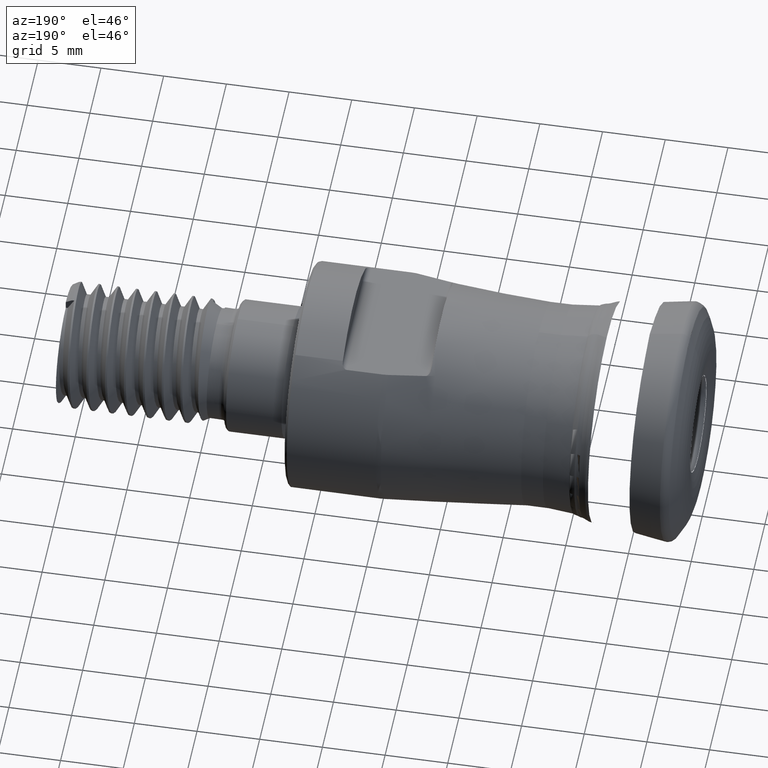
[diagram: clean part render]
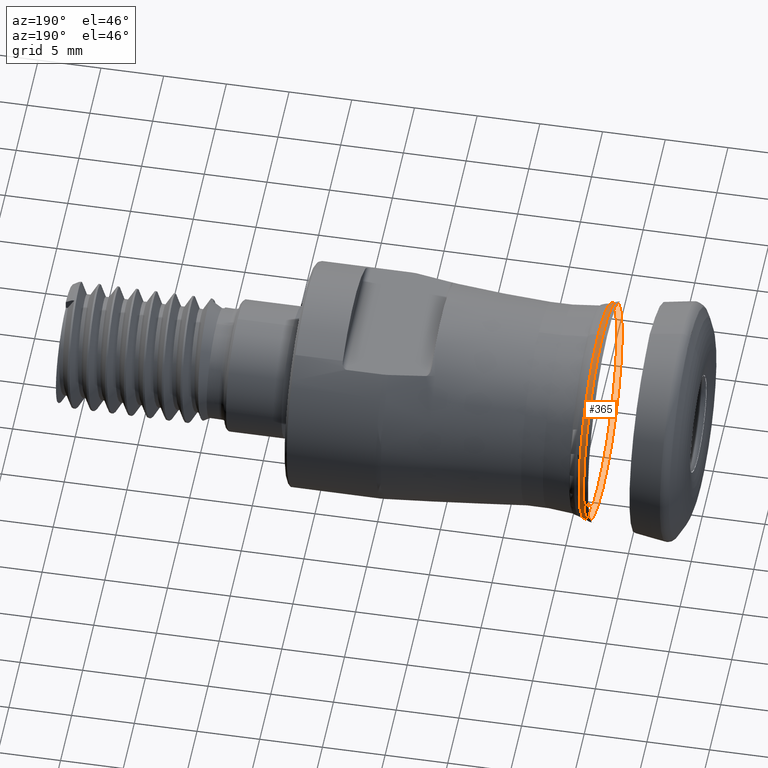
[diagram: same view with one face highlighted and labeled with its STEP entity id]
A machine part, auxiliary view. The second image highlights one B-rep face of the part: STEP entity #365.
In plain terms, the highlighted face is a SurfaceOfRevolution surface.
Its self-contained STEP definition (entity closure, byte-faithful):
#106=SURFACE_OF_REVOLUTION('',#298,#139);
#139=AXIS1_PLACEMENT('',#3573,#1389);
#298=B_SPLINE_CURVE_WITH_KNOTS('',3,(#3569,#3570,#3571,#3572),
 .UNSPECIFIED.,.F.,.F.,(4,4),(0.,1.),.UNSPECIFIED.);
#365=ADVANCED_FACE('',(#451,#452),#106,.T.);
#451=FACE_BOUND('',#576,.T.);
#452=FACE_BOUND('',#577,.T.);
#576=EDGE_LOOP('',(#798));
#577=EDGE_LOOP('',(#799));
#798=ORIENTED_EDGE('',*,*,#1033,.F.);
#799=ORIENTED_EDGE('',*,*,#1034,.T.);
#922=VERTEX_POINT('',#3558);
#923=VERTEX_POINT('',#3568);
#1033=EDGE_CURVE('',#922,#922,#1097,.T.);
#1034=EDGE_CURVE('',#923,#923,#1098,.T.);
#1097=CIRCLE('',#1196,8.55438606911815);
#1098=CIRCLE('',#1197,8.71565294498261);
#1196=AXIS2_PLACEMENT_3D('',#3557,#1384,#1385);
#1197=AXIS2_PLACEMENT_3D('',#3567,#1387,#1388);
#1384=DIRECTION('',(1.,0.,0.));
#1385=DIRECTION('',(0.,0.,-1.));
#1387=DIRECTION('',(1.,0.,0.));
#1388=DIRECTION('',(0.,0.,-1.));
#1389=DIRECTION('',(1.,0.,0.));
#3557=CARTESIAN_POINT('',(8.31403114147479,0.,0.));
#3558=CARTESIAN_POINT('',(8.31403114147479,0.,-8.55438606911815));
#3567=CARTESIAN_POINT('',(7.92199510201559,0.,0.));
#3568=CARTESIAN_POINT('',(7.92199510201559,0.,-8.71565294498261));
#3569=CARTESIAN_POINT('',(7.92199510201558,-8.1969144943638,2.96195864749538));
#3570=CARTESIAN_POINT('',(8.05192743445057,-8.17551783003923,2.85825613381963));
#3571=CARTESIAN_POINT('',(8.18253088380849,-8.15400865826534,2.75540706884816));
#3572=CARTESIAN_POINT('',(8.31403114147479,-8.13234906150324,2.65375578405212));
#3573=CARTESIAN_POINT('',(0.,0.,0.));